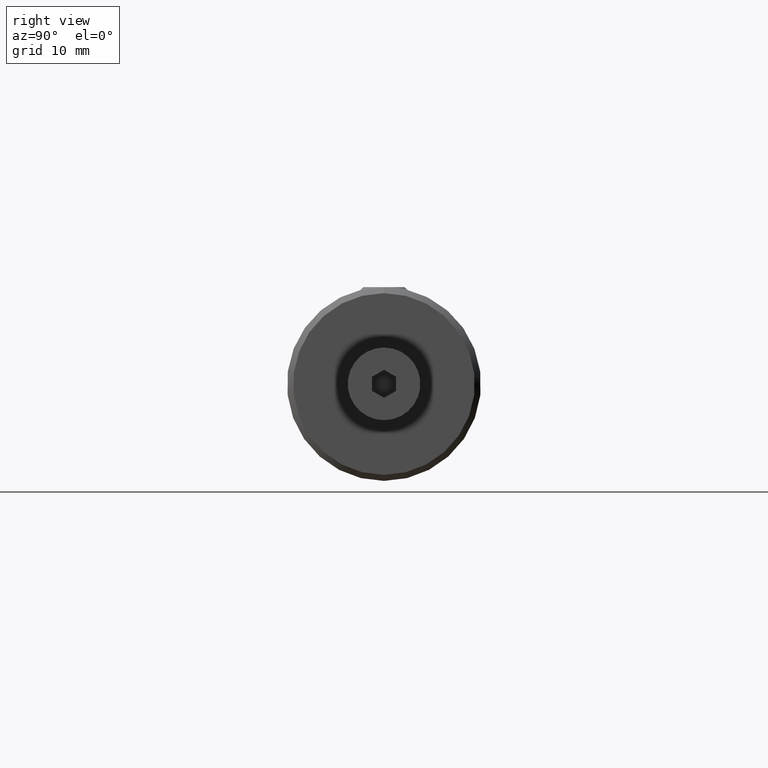
[diagram: clean part render]
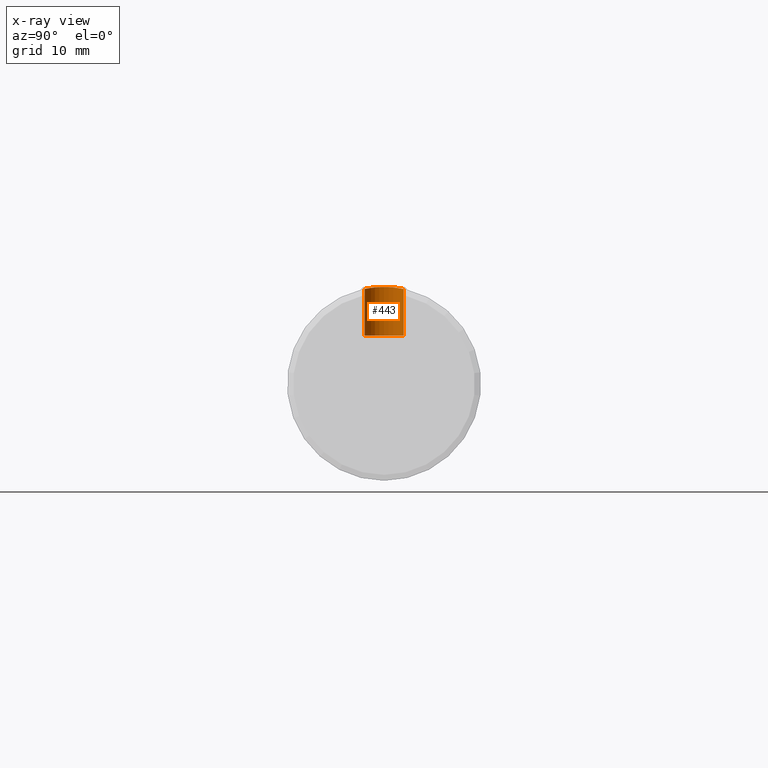
[diagram: x-ray — body ghosted, one internal face saturated and labeled with its STEP entity id]
A machine part, right view, then the same camera in x-ray: the body is ghosted and one INTERNAL B-rep face — a face not visible from any outside direction — is saturated and labeled: STEP entity #443.
In plain terms, the highlighted cylindrical surface (edge-blend (fillet) strip) has radius 1.65 mm, axis along (0, 0, -1).
Its self-contained STEP definition (entity closure, byte-faithful):
#10 = DIRECTION ( 'NONE',  ( 0.000000000000000000, 0.000000000000000000, -1.000000000000000000 ) ) ;
#40 = DIRECTION ( 'NONE',  ( 1.000000000000000000, 0.000000000000000000, 0.000000000000000000 ) ) ;
#47 = ORIENTED_EDGE ( 'NONE', *, *, #743, .T. ) ;
#48 = CARTESIAN_POINT ( 'NONE',  ( 6.311515751002518826, 1.148668007518377721, 7.917454812073199122 ) ) ;
#59 = CARTESIAN_POINT ( 'NONE',  ( 6.868425858103002213, -1.536637581384760143, 7.851618803921565970 ) ) ;
#70 = CARTESIAN_POINT ( 'NONE',  ( 7.249999999999997335, 1.630950643030010472, 7.831985699680511281 ) ) ;
#71 = CARTESIAN_POINT ( 'NONE',  ( 7.500000000000000000, 0.000000000000000000, 8.000000000000000000 ) ) ;
#148 = B_SPLINE_CURVE_WITH_KNOTS ( 'NONE', 3,
 ( #1499, #808, #1793, #176, #922, #1515, #636, #1365, #48, #1217, #1810, #1197, #452, #601, #442, #163 ),
 .UNSPECIFIED., .F., .F.,
 ( 4, 2, 2, 2, 2, 2, 2, 4 ),
 ( 0.002835874755387478210, 0.003127960128604552730, 0.003420045501821627251, 0.003712130875038701337, 0.004004216248255775858, 0.004296301621472850378, 0.004588386994689924898, 0.005172557741124073939 ),
 .UNSPECIFIED. ) ;
#163 = CARTESIAN_POINT ( 'NONE',  ( 5.849999999999999645, -9.797177280130657527E-16, 8.000000000000000000 ) ) ;
#176 = CARTESIAN_POINT ( 'NONE',  ( 6.874302747824478921, 1.529863656619127044, 7.852423049668634469 ) ) ;
#177 = CARTESIAN_POINT ( 'NONE',  ( 7.500000000000000000, 0.000000000000000000, 4.000000000000000000 ) ) ;
#192 = VERTEX_POINT ( 'NONE', #420 ) ;
#229 = LINE ( 'NONE', #1265, #585 ) ;
#352 = FACE_OUTER_BOUND ( 'NONE', #1734, .T. ) ;
#395 = VERTEX_POINT ( 'NONE', #1349 ) ;
#420 = CARTESIAN_POINT ( 'NONE',  ( 7.250000000000002665, 1.630950643030009806, 4.000000000000000000 ) ) ;
#442 = CARTESIAN_POINT ( 'NONE',  ( 5.850000000000000533, 0.1948791552277833183, 8.000000000000000000 ) ) ;
#443 = ADVANCED_FACE ( 'NONE', ( #352 ), #940, .F. ) ;
#452 = CARTESIAN_POINT ( 'NONE',  ( 5.986906842086524350, 0.6652157703864260974, 7.972819368972082543 ) ) ;
#457 = CARTESIAN_POINT ( 'NONE',  ( 7.249999999999999112, -1.630950643030010028, 7.831985699680509505 ) ) ;
#475 = CARTESIAN_POINT ( 'NONE',  ( 7.250000000000002665, -1.630950643030010028, 8.000000000000000000 ) ) ;
#501 = DIRECTION ( 'NONE',  ( -0.000000000000000000, -0.000000000000000000, 1.000000000000000000 ) ) ;
#584 = AXIS2_PLACEMENT_3D ( 'NONE', #177, #931, #1366 ) ;
#585 = VECTOR ( 'NONE', #501, 1000.000000000000000 ) ;
#601 = CARTESIAN_POINT ( 'NONE',  ( 5.885381863884660447, 0.3916120239585191842, 7.992501665210952844 ) ) ;
#628 = EDGE_CURVE ( 'NONE', #1314, #192, #1413, .T. ) ;
#635 = ORIENTED_EDGE ( 'NONE', *, *, #1860, .T. ) ;
#636 = CARTESIAN_POINT ( 'NONE',  ( 6.533099981453266203, 1.340543924859564751, 7.887129590209505992 ) ) ;
#657 = CARTESIAN_POINT ( 'NONE',  ( 5.849999999999999645, -9.797177280130657527E-16, 8.000000000000000000 ) ) ;
#673 = EDGE_CURVE ( 'NONE', #1868, #1314, #1163, .T. ) ;
#743 = EDGE_CURVE ( 'NONE', #395, #1584, #1463, .T. ) ;
#787 = VERTEX_POINT ( 'NONE', #70 ) ;
#808 = CARTESIAN_POINT ( 'NONE',  ( 7.153069607854820156, 1.616092683876030334, 7.835079755130237800 ) ) ;
#910 = DIRECTION ( 'NONE',  ( 0.000000000000000000, 0.000000000000000000, -1.000000000000000000 ) ) ;
#922 = CARTESIAN_POINT ( 'NONE',  ( 6.783735348336710658, 1.489618741805397439, 7.860238702376334707 ) ) ;
#931 = DIRECTION ( 'NONE',  ( 0.000000000000000000, 0.000000000000000000, -1.000000000000000000 ) ) ;
#937 = CARTESIAN_POINT ( 'NONE',  ( 5.885476445757543473, -0.3919443574440301115, 7.992482679703602599 ) ) ;
#940 = CYLINDRICAL_SURFACE ( 'NONE', #1625, 1.650000000000000355 ) ;
#968 = ORIENTED_EDGE ( 'NONE', *, *, #1722, .T. ) ;
#969 = CARTESIAN_POINT ( 'NONE',  ( 6.529213468811085441, -1.348226414256571859, 7.886156125421282859 ) ) ;
#1090 = CARTESIAN_POINT ( 'NONE',  ( 7.057507893649555442, -1.601444522294064310, 7.838130121852983301 ) ) ;
#1095 = LINE ( 'NONE', #475, #1256 ) ;
#1148 = ORIENTED_EDGE ( 'NONE', *, *, #673, .T. ) ;
#1163 = CIRCLE ( 'NONE', #1661, 1.650000000000000355 ) ;
#1197 = CARTESIAN_POINT ( 'NONE',  ( 6.029468212116787740, 0.7546750653301830258, 7.964771715704664246 ) ) ;
#1203 = ORIENTED_EDGE ( 'NONE', *, *, #1700, .T. ) ;
#1217 = CARTESIAN_POINT ( 'NONE',  ( 6.184962371079916643, 1.001303668292289117, 7.937437864738326354 ) ) ;
#1247 = DIRECTION ( 'NONE',  ( 1.000000000000000000, 0.000000000000000000, 0.000000000000000000 ) ) ;
#1256 = VECTOR ( 'NONE', #910, 1000.000000000000000 ) ;
#1259 = CARTESIAN_POINT ( 'NONE',  ( 5.849999999999996980, -0.1949157251136275359, 7.999999999999998224 ) ) ;
#1265 = CARTESIAN_POINT ( 'NONE',  ( 7.250000000000002665, 1.630950643030010028, 8.000000000000000000 ) ) ;
#1314 = VERTEX_POINT ( 'NONE', #1465 ) ;
#1327 = CARTESIAN_POINT ( 'NONE',  ( 7.500000000000000000, 0.000000000000000000, 4.000000000000000000 ) ) ;
#1349 = CARTESIAN_POINT ( 'NONE',  ( 5.849999999999999645, -9.797177280130657527E-16, 8.000000000000000000 ) ) ;
#1365 = CARTESIAN_POINT ( 'NONE',  ( 6.382349324590555817, 1.217707119179472830, 7.907026024943629494 ) ) ;
#1366 = DIRECTION ( 'NONE',  ( 1.000000000000000000, 0.000000000000000000, 0.000000000000000000 ) ) ;
#1399 = CARTESIAN_POINT ( 'NONE',  ( 7.250000000000002665, -1.630950643030009806, 4.000000000000000000 ) ) ;
#1413 = CIRCLE ( 'NONE', #584, 1.650000000000000355 ) ;
#1463 = B_SPLINE_CURVE_WITH_KNOTS ( 'NONE', 3,
 ( #657, #1259, #937, #1687, #1835, #1551, #969, #59, #1090, #1714 ),
 .UNSPECIFIED., .F., .F.,
 ( 4, 2, 2, 2, 4 ),
 ( 0.005172557741124073939, 0.005756838109633939313, 0.006341118478143803819, 0.006925398846653669192, 0.007509679215163534566 ),
 .UNSPECIFIED. ) ;
#1465 = CARTESIAN_POINT ( 'NONE',  ( 5.849999999999999645, 0.000000000000000000, 4.000000000000000000 ) ) ;
#1499 = CARTESIAN_POINT ( 'NONE',  ( 7.249999999999997335, 1.630950643030010472, 7.831985699680511281 ) ) ;
#1515 = CARTESIAN_POINT ( 'NONE',  ( 6.613348921248014101, 1.394936884489105688, 7.877592750489489148 ) ) ;
#1551 = CARTESIAN_POINT ( 'NONE',  ( 6.374841758793658997, -1.222327932133200123, 7.907459971961007028 ) ) ;
#1584 = VERTEX_POINT ( 'NONE', #457 ) ;
#1625 = AXIS2_PLACEMENT_3D ( 'NONE', #71, #1852, #1247 ) ;
#1661 = AXIS2_PLACEMENT_3D ( 'NONE', #1327, #10, #40 ) ;
#1687 = CARTESIAN_POINT ( 'NONE',  ( 6.020813109356322634, -0.7565136013871854859, 7.966246728266106913 ) ) ;
#1700 = EDGE_CURVE ( 'NONE', #1584, #1868, #1095, .T. ) ;
#1714 = CARTESIAN_POINT ( 'NONE',  ( 7.249999999999999112, -1.630950643030010028, 7.831985699680509505 ) ) ;
#1722 = EDGE_CURVE ( 'NONE', #787, #395, #148, .T. ) ;
#1734 = EDGE_LOOP ( 'NONE', ( #635, #968, #47, #1203, #1148, #1798 ) ) ;
#1793 = CARTESIAN_POINT ( 'NONE',  ( 7.058569458828396925, 1.592833618600822732, 7.839892322109172085 ) ) ;
#1798 = ORIENTED_EDGE ( 'NONE', *, *, #628, .T. ) ;
#1810 = CARTESIAN_POINT ( 'NONE',  ( 6.128534374602755186, 0.9225400976433799638, 7.947077620469062076 ) ) ;
#1835 = CARTESIAN_POINT ( 'NONE',  ( 6.122211583510114963, -0.9283133742513153264, 7.947341886506754882 ) ) ;
#1852 = DIRECTION ( 'NONE',  ( 0.000000000000000000, 0.000000000000000000, -1.000000000000000000 ) ) ;
#1860 = EDGE_CURVE ( 'NONE', #192, #787, #229, .T. ) ;
#1868 = VERTEX_POINT ( 'NONE', #1399 ) ;